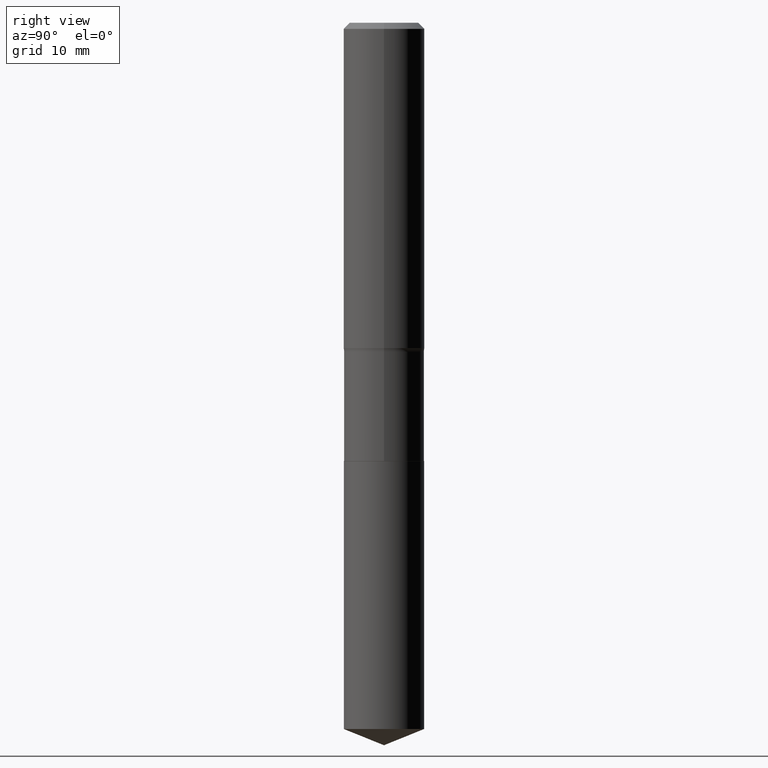
[diagram: clean part render]
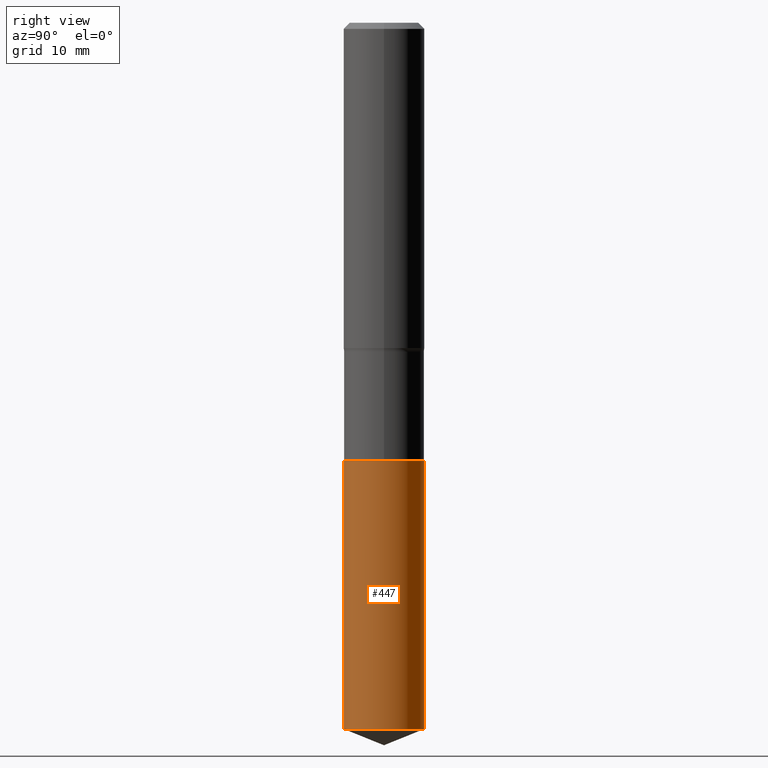
[diagram: same view with one face highlighted and labeled with its STEP entity id]
A machine part, right view. The second image highlights one B-rep face of the part: STEP entity #447.
In plain terms, the highlighted cylindrical surface (partial cylindrical patch) has radius 4.9505 mm, axis along (-0, 0, 1).
Its self-contained STEP definition (entity closure, byte-faithful):
#5 = DIRECTION ( 'NONE',  ( -2.445359563184350382E-29, 3.491637781037997062E-15, 1.000000000000000000 ) ) ;
#8 = AXIS2_PLACEMENT_3D ( 'NONE', #298, #29, #331 ) ;
#13 = DIRECTION ( 'NONE',  ( -6.982962677686266711E-15, -1.000000000000000000, 2.803332984776052637E-15 ) ) ;
#29 = DIRECTION ( 'NONE',  ( -2.445359563184350382E-29, 3.491637781037997062E-15, 1.000000000000000000 ) ) ;
#34 = CARTESIAN_POINT ( 'NONE',  ( -1.360979425881001224E-15, -0.1949000000000074007, -2.125899999999999235 ) ) ;
#38 = AXIS2_PLACEMENT_3D ( 'NONE', #204, #430, #311 ) ;
#46 = EDGE_CURVE ( 'NONE', #60, #227, #147, .T. ) ;
#51 = EDGE_CURVE ( 'NONE', #82, #60, #299, .T. ) ;
#58 = AXIS2_PLACEMENT_3D ( 'NONE', #125, #5, #13 ) ;
#60 = VERTEX_POINT ( 'NONE', #442 ) ;
#82 = VERTEX_POINT ( 'NONE', #114 ) ;
#114 = CARTESIAN_POINT ( 'NONE',  ( -1.360979425880969472E-15, -0.1949000000000119248, -3.425155288584727398 ) ) ;
#125 = CARTESIAN_POINT ( 'NONE',  ( 5.198822135068982087E-29, -7.422540178246643119E-15, -2.125899999999999679 ) ) ;
#145 = CARTESIAN_POINT ( 'NONE',  ( 1.384847791996486861E-15, 0.1948999999999925792, -2.125900000000000567 ) ) ;
#147 = LINE ( 'NONE', #145, #333 ) ;
#193 = LINE ( 'NONE', #459, #315 ) ;
#202 = EDGE_LOOP ( 'NONE', ( #205, #306, #318, #359 ) ) ;
#204 = CARTESIAN_POINT ( 'NONE',  ( 5.198822135068982087E-29, -7.422540178246643119E-15, -2.125899999999999679 ) ) ;
#205 = ORIENTED_EDGE ( 'NONE', *, *, #51, .T. ) ;
#227 = VERTEX_POINT ( 'NONE', #344 ) ;
#233 = CIRCLE ( 'NONE', #58, 0.1948999999999999899 ) ;
#253 = DIRECTION ( 'NONE',  ( -2.445359563184350382E-29, 3.491637781037997457E-15, 1.000000000000000000 ) ) ;
#255 = EDGE_CURVE ( 'NONE', #82, #278, #193, .T. ) ;
#269 = DIRECTION ( 'NONE',  ( -2.445359563184350382E-29, 3.491637781037997457E-15, 1.000000000000000000 ) ) ;
#278 = VERTEX_POINT ( 'NONE', #34 ) ;
#279 = CYLINDRICAL_SURFACE ( 'NONE', #38, 0.1948999999999999899 ) ;
#298 = CARTESIAN_POINT ( 'NONE',  ( 8.375968480027488241E-29, -1.195906903108250715E-14, -3.425155288584728286 ) ) ;
#299 = CIRCLE ( 'NONE', #8, 0.1948999999999999899 ) ;
#306 = ORIENTED_EDGE ( 'NONE', *, *, #46, .T. ) ;
#311 = DIRECTION ( 'NONE',  ( -6.982962677686266711E-15, -1.000000000000000000, 2.803332984776052637E-15 ) ) ;
#315 = VECTOR ( 'NONE', #269, 39.37007874015748143 ) ;
#318 = ORIENTED_EDGE ( 'NONE', *, *, #390, .F. ) ;
#331 = DIRECTION ( 'NONE',  ( -6.982962677686266711E-15, -1.000000000000000000, 2.803332984776052637E-15 ) ) ;
#333 = VECTOR ( 'NONE', #253, 39.37007874015748143 ) ;
#344 = CARTESIAN_POINT ( 'NONE',  ( 1.384847791996518810E-15, 0.1948999999999925792, -2.125900000000000567 ) ) ;
#352 = FACE_OUTER_BOUND ( 'NONE', #202, .T. ) ;
#359 = ORIENTED_EDGE ( 'NONE', *, *, #255, .F. ) ;
#390 = EDGE_CURVE ( 'NONE', #278, #227, #233, .T. ) ;
#430 = DIRECTION ( 'NONE',  ( -2.445359563184350382E-29, 3.491637781037997062E-15, 1.000000000000000000 ) ) ;
#442 = CARTESIAN_POINT ( 'NONE',  ( 1.384847791996518810E-15, 0.1948999999999880550, -3.425155288584728730 ) ) ;
#447 = ADVANCED_FACE ( 'NONE', ( #352 ), #279, .T. ) ;
#459 = CARTESIAN_POINT ( 'NONE',  ( -1.360979425881001224E-15, -0.1949000000000074007, -2.125899999999999235 ) ) ;